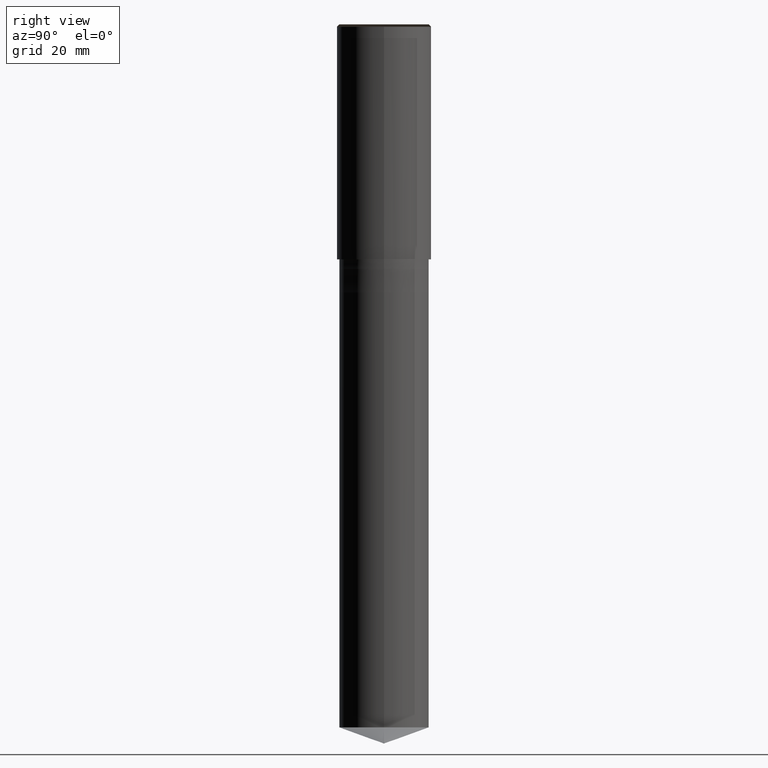
[diagram: clean part render]
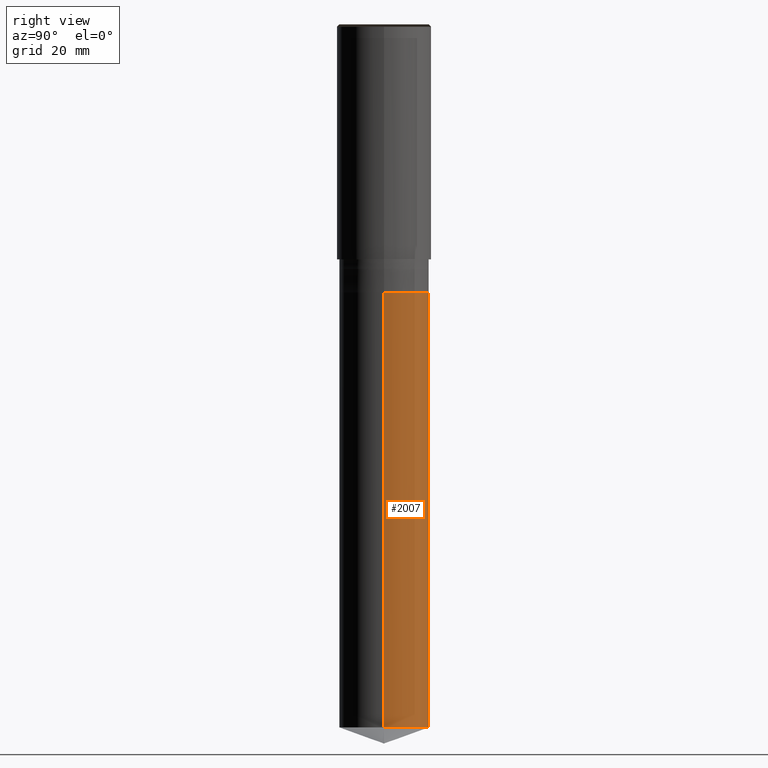
[diagram: same view with one face highlighted and labeled with its STEP entity id]
A machine part, right view. The second image highlights one B-rep face of the part: STEP entity #2007.
In plain terms, the highlighted face is a freeform B-spline surface patch.
Its self-contained STEP definition (entity closure, byte-faithful):
#1909=CARTESIAN_POINT('',(9.5,0.0,-99.542282774471));
#1910=CARTESIAN_POINT('',(9.5,9.5,-99.542282774471));
#1911=CARTESIAN_POINT('',(0.0,9.5,-99.542282774471));
#1912=CARTESIAN_POINT('',(-9.5,9.5,-99.542282774471));
#1913=CARTESIAN_POINT('',(-9.5,0.0,-99.542282774471));
#1914=CARTESIAN_POINT('',(9.5,0.0,-7.0));
#1915=CARTESIAN_POINT('',(9.5,9.5,-7.0));
#1916=CARTESIAN_POINT('',(0.0,9.5,-7.0));
#1917=CARTESIAN_POINT('',(-9.5,9.5,-7.0));
#1918=CARTESIAN_POINT('',(-9.5,0.0,-7.0));
#1988=(
BOUNDED_SURFACE()
B_SPLINE_SURFACE(1,2,(
(#1909,#1910,#1911,#1912,#1913),
(#1914,#1915,#1916,#1917,#1918)
), .UNSPECIFIED.,.F.,.F.,.F.)
B_SPLINE_SURFACE_WITH_KNOTS((2,2),(3,2,3),(
0.0,1.0),(
0.0,0.5,1.0), .UNSPECIFIED.)
GEOMETRIC_REPRESENTATION_ITEM()
RATIONAL_B_SPLINE_SURFACE(((1.0,0.707106781187,1.0,0.707106781187,1.0),
(1.0,0.707106781187,1.0,0.707106781187,1.0)
))
REPRESENTATION_ITEM('')
SURFACE()
);
#1989=(
BOUNDED_CURVE()
B_SPLINE_CURVE(2,(#1913,#1912,#1911,#1910,#1909),.UNSPECIFIED.,.F.,.F.)
B_SPLINE_CURVE_WITH_KNOTS((3,2,3),
(0.0,0.5,1.0),.UNSPECIFIED.)
CURVE()
GEOMETRIC_REPRESENTATION_ITEM()
RATIONAL_B_SPLINE_CURVE((1.0,0.707106781187,1.0,0.707106781187,1.0))
REPRESENTATION_ITEM('')
);
#1990=(
BOUNDED_CURVE()
B_SPLINE_CURVE(1,(#1909,#1914),.UNSPECIFIED.,.F.,.F.)
B_SPLINE_CURVE_WITH_KNOTS((2,2),
(0.0,1.0),.UNSPECIFIED.)
CURVE()
GEOMETRIC_REPRESENTATION_ITEM()
RATIONAL_B_SPLINE_CURVE((1.0,1.0))
REPRESENTATION_ITEM('')
);
#1991=(
BOUNDED_CURVE()
B_SPLINE_CURVE(2,(#1914,#1915,#1916,#1917,#1918),.UNSPECIFIED.,.F.,.F.)
B_SPLINE_CURVE_WITH_KNOTS((3,2,3),
(0.0,0.5,1.0),.UNSPECIFIED.)
CURVE()
GEOMETRIC_REPRESENTATION_ITEM()
RATIONAL_B_SPLINE_CURVE((1.0,0.707106781187,1.0,0.707106781187,1.0))
REPRESENTATION_ITEM('')
);
#1992=(
BOUNDED_CURVE()
B_SPLINE_CURVE(1,(#1918,#1913),.UNSPECIFIED.,.F.,.F.)
B_SPLINE_CURVE_WITH_KNOTS((2,2),
(0.0,1.0),.UNSPECIFIED.)
CURVE()
GEOMETRIC_REPRESENTATION_ITEM()
RATIONAL_B_SPLINE_CURVE((1.0,1.0))
REPRESENTATION_ITEM('')
);
#1993=VERTEX_POINT('',#1909);
#1994=VERTEX_POINT('',#1913);
#1995=VERTEX_POINT('',#1914);
#1996=VERTEX_POINT('',#1918);
#1997=EDGE_CURVE('',#1994,#1993,#1989,.T.);
#1998=EDGE_CURVE('',#1993,#1995,#1990,.T.);
#1999=EDGE_CURVE('',#1995,#1996,#1991,.T.);
#2000=EDGE_CURVE('',#1996,#1994,#1992,.T.);
#2001=ORIENTED_EDGE('',*,*,#1997,.T.);
#2002=ORIENTED_EDGE('',*,*,#1998,.T.);
#2003=ORIENTED_EDGE('',*,*,#1999,.T.);
#2004=ORIENTED_EDGE('',*,*,#2000,.T.);
#2005=EDGE_LOOP('',(#2001,#2002,#2003,#2004));
#2006=FACE_OUTER_BOUND('',#2005,.T.);
#2007=ADVANCED_FACE('',(#2006),#1988,.T.);